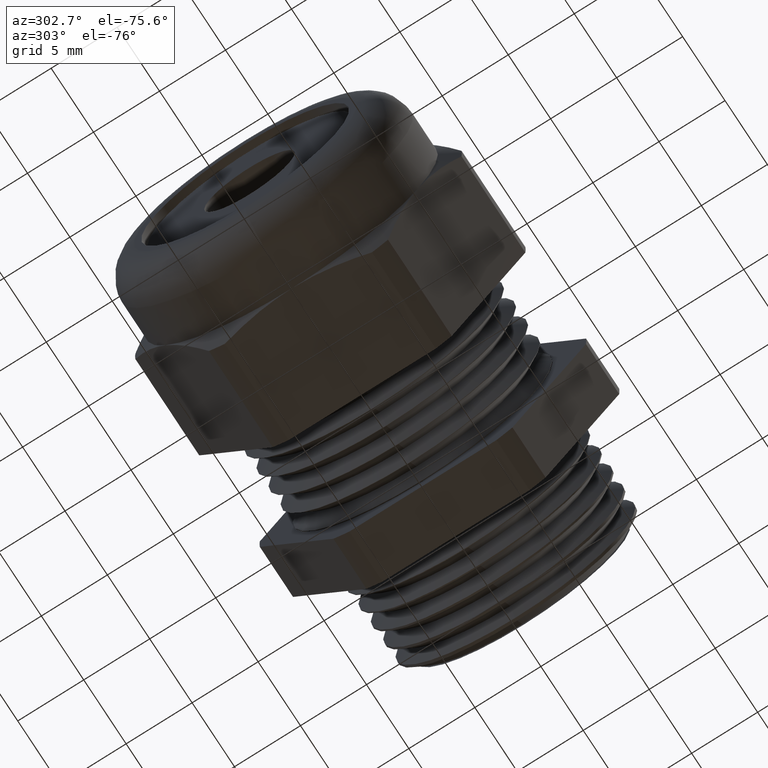
[diagram: clean part render]
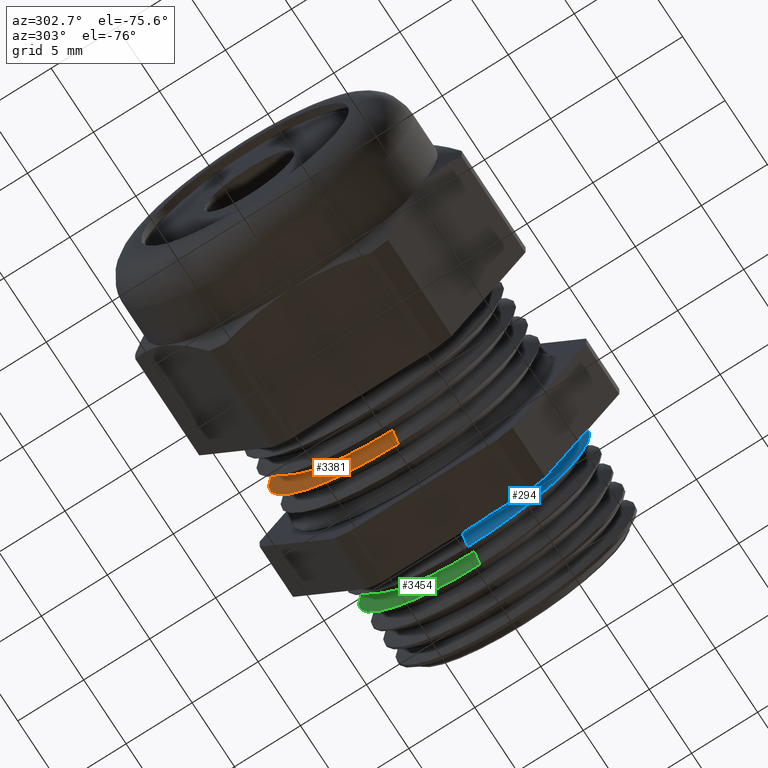
[diagram: same view with three faces highlighted in distinct colors, each labeled with its STEP entity id]
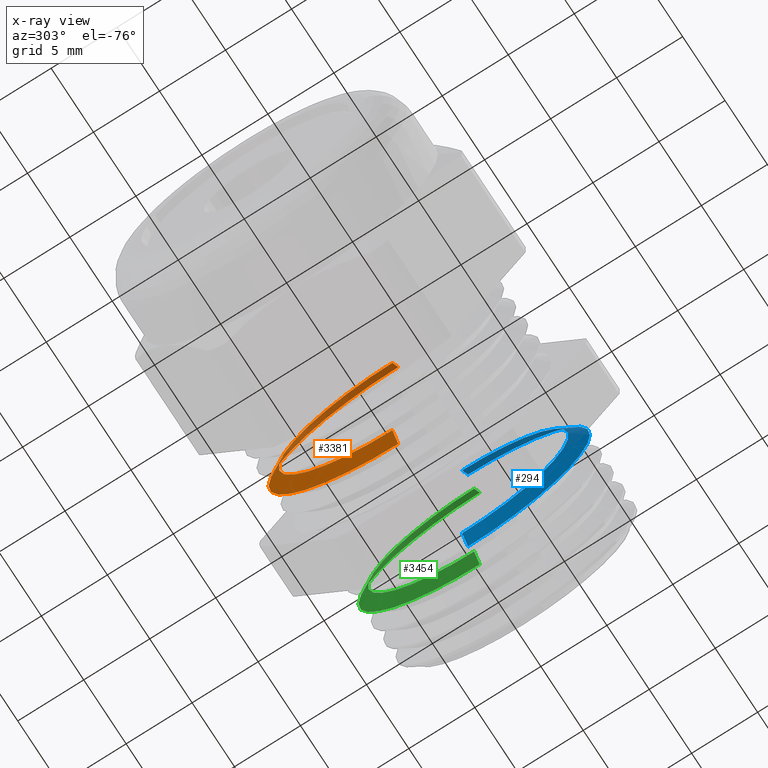
[diagram: x-ray of the same camera — body ghosted, the three highlighted faces saturated]
A machine part, auxiliary view with three faces highlighted in distinct colors.
The next image is the same camera in x-ray (body ghosted, the three faces saturated) — at least one of them is partly hidden behind the body in this view.
Their STEP definitions:

[orange] entity #3381 — the highlighted conical surface has half-angle 60 deg.
#2789 = DIRECTION ( 'NONE',  ( 0.0000000000000000000, 0.0000000000000000000, -1.000000000000000000 ) ) ;
#2790 = DIRECTION ( 'NONE',  ( 1.000000000000000000, 0.0000000000000000000, 0.0000000000000000000 ) ) ;
#2791 = AXIS2_PLACEMENT_3D ( 'NONE', #2794, #2790, #2789 ) ;
#2792 = CONICAL_SURFACE ( 'NONE', #2791, 0.3392686249999999900, 1.047197551196595600 ) ;
#2794 = CARTESIAN_POINT ( 'NONE',  ( -0.2963333461552114000, 0.0000000000000000000, 0.0000000000000000000 ) ) ;
#2800 = FACE_OUTER_BOUND ( 'NONE', #3365, .T. ) ;
#2886 = CARTESIAN_POINT ( 'NONE',  ( -0.2963333461552114000, 0.0000000000000000000, 0.0000000000000000000 ) ) ;
#2887 = CARTESIAN_POINT ( 'NONE',  ( -0.2963333461552114000, 0.0000000000000000000, -0.3392686249999999900 ) ) ;
#2888 = CARTESIAN_POINT ( 'NONE',  ( -0.2963333461552114000, 4.446500411237423700E-017, 0.3392686249999999900 ) ) ;
#2941 = DIRECTION ( 'NONE',  ( 0.0000000000000000000, 0.0000000000000000000, -1.000000000000000000 ) ) ;
#2942 = DIRECTION ( 'NONE',  ( 1.000000000000000000, 0.0000000000000000000, 0.0000000000000000000 ) ) ;
#2943 = AXIS2_PLACEMENT_3D ( 'NONE', #2886, #2942, #2941 ) ;
#2944 = CIRCLE ( 'NONE', #2943, 0.3392686249999999900 ) ;
#3147 = DIRECTION ( 'NONE',  ( 0.5000000000000017800, 0.0000000000000000000, -0.8660254037844374900 ) ) ;
#3148 = VECTOR ( 'NONE', #3147, 39.37007874015748100 ) ;
#3149 = CARTESIAN_POINT ( 'NONE',  ( -0.2963333461552114000, 0.0000000000000000000, -0.3392686249999999900 ) ) ;
#3154 = LINE ( 'NONE', #3149, #3148 ) ;
#3183 = DIRECTION ( 'NONE',  ( 0.5000000000000017800, 1.060575238724905400E-016, 0.8660254037844374900 ) ) ;
#3184 = VECTOR ( 'NONE', #3183, 39.37007874015748100 ) ;
#3185 = CARTESIAN_POINT ( 'NONE',  ( -0.2963333461552114000, 4.154842356573737500E-017, 0.3392686249999999900 ) ) ;
#3186 = LINE ( 'NONE', #3185, #3184 ) ;
#3187 = CARTESIAN_POINT ( 'NONE',  ( -0.2688333589770892700, 0.0000000000000000000, 0.3869000000000000200 ) ) ;
#3189 = CARTESIAN_POINT ( 'NONE',  ( -0.2688333589770892700, 4.738158465901109900E-017, -0.3869000000000000200 ) ) ;
#3190 = DIRECTION ( 'NONE',  ( 0.0000000000000000000, 0.0000000000000000000, -1.000000000000000000 ) ) ;
#3191 = DIRECTION ( 'NONE',  ( 1.000000000000000000, 0.0000000000000000000, 0.0000000000000000000 ) ) ;
#3192 = CARTESIAN_POINT ( 'NONE',  ( -0.2688333589770892700, 0.0000000000000000000, 0.0000000000000000000 ) ) ;
#3193 = AXIS2_PLACEMENT_3D ( 'NONE', #3192, #3191, #3190 ) ;
#3194 = CIRCLE ( 'NONE', #3193, 0.3869000000000000200 ) ;
#3365 = EDGE_LOOP ( 'NONE', ( #3377, #3393, #3564, #3538 ) ) ;
#3377 = ORIENTED_EDGE ( 'NONE', *, *, #3428, .T. ) ;
#3381 = ADVANCED_FACE ( 'NONE', ( #2800 ), #2792, .T. ) ;
#3393 = ORIENTED_EDGE ( 'NONE', *, *, #3565, .T. ) ;
#3424 = VERTEX_POINT ( 'NONE', #2888 ) ;
#3425 = VERTEX_POINT ( 'NONE', #2887 ) ;
#3428 = EDGE_CURVE ( 'NONE', #3425, #3424, #2944, .T. ) ;
#3538 = ORIENTED_EDGE ( 'NONE', *, *, #3552, .F. ) ;
#3552 = EDGE_CURVE ( 'NONE', #3425, #3561, #3154, .T. ) ;
#3560 = EDGE_CURVE ( 'NONE', #3561, #3563, #3194, .T. ) ;
#3561 = VERTEX_POINT ( 'NONE', #3189 ) ;
#3563 = VERTEX_POINT ( 'NONE', #3187 ) ;
#3564 = ORIENTED_EDGE ( 'NONE', *, *, #3560, .F. ) ;
#3565 = EDGE_CURVE ( 'NONE', #3424, #3563, #3186, .T. ) ;

[blue] entity #294 — the highlighted conical surface has half-angle 60 deg.
#292 = ORIENTED_EDGE ( 'NONE', *, *, #3315, .T. ) ;
#293 = ORIENTED_EDGE ( 'NONE', *, *, #516, .T. ) ;
#294 = ADVANCED_FACE ( 'NONE', ( #1468 ), #1463, .T. ) ;
#367 = EDGE_LOOP ( 'NONE', ( #368, #369, #292, #293 ) ) ;
#368 = ORIENTED_EDGE ( 'NONE', *, *, #3316, .F. ) ;
#369 = ORIENTED_EDGE ( 'NONE', *, *, #455, .F. ) ;
#455 = EDGE_CURVE ( 'NONE', #3472, #3398, #1682, .T. ) ;
#516 = EDGE_CURVE ( 'NONE', #3301, #3319, #1818, .T. ) ;
#1458 = DIRECTION ( 'NONE',  ( 0.0000000000000000000, 0.0000000000000000000, -1.000000000000000000 ) ) ;
#1459 = DIRECTION ( 'NONE',  ( 1.000000000000000000, 0.0000000000000000000, 0.0000000000000000000 ) ) ;
#1460 = CARTESIAN_POINT ( 'NONE',  ( 0.02793169791390365600, 0.0000000000000000000, 0.0000000000000000000 ) ) ;
#1461 = AXIS2_PLACEMENT_3D ( 'NONE', #1460, #1459, #1458 ) ;
#1463 = CONICAL_SURFACE ( 'NONE', #1461, 0.3166208800714525600, 1.047197551196598700 ) ;
#1468 = FACE_OUTER_BOUND ( 'NONE', #367, .T. ) ;
#1674 = DIRECTION ( 'NONE',  ( 0.0000000000000000000, 0.0000000000000000000, 1.000000000000000000 ) ) ;
#1675 = DIRECTION ( 'NONE',  ( -1.000000000000000000, 0.0000000000000000000, 0.0000000000000000000 ) ) ;
#1676 = CARTESIAN_POINT ( 'NONE',  ( 0.02793169791390365600, 0.0000000000000000000, 0.0000000000000000000 ) ) ;
#1677 = AXIS2_PLACEMENT_3D ( 'NONE', #1676, #1675, #1674 ) ;
#1682 = CIRCLE ( 'NONE', #1677, 0.3166208800714525600 ) ;
#1814 = DIRECTION ( 'NONE',  ( 0.0000000000000000000, 0.0000000000000000000, 1.000000000000000000 ) ) ;
#1815 = DIRECTION ( 'NONE',  ( -1.000000000000000000, 0.0000000000000000000, 0.0000000000000000000 ) ) ;
#1816 = CARTESIAN_POINT ( 'NONE',  ( 0.05503140632520380600, 0.0000000000000000000, 0.0000000000000000000 ) ) ;
#1817 = AXIS2_PLACEMENT_3D ( 'NONE', #1816, #1815, #1814 ) ;
#1818 = CIRCLE ( 'NONE', #1817, 0.3635589519101262200 ) ;
#2632 = CARTESIAN_POINT ( 'NONE',  ( 0.05503140632520380600, 4.452313067581024500E-017, -0.3635589519101261600 ) ) ;
#2665 = DIRECTION ( 'NONE',  ( 0.4999999999999991100, 1.060575238724907500E-016, 0.8660254037844391500 ) ) ;
#2666 = VECTOR ( 'NONE', #2665, 39.37007874015748100 ) ;
#2667 = CARTESIAN_POINT ( 'NONE',  ( 0.02793169791390365600, 3.877487473227224100E-017, 0.3166208800714525600 ) ) ;
#2668 = LINE ( 'NONE', #2667, #2666 ) ;
#2669 = DIRECTION ( 'NONE',  ( 0.4999999999999991100, 0.0000000000000000000, -0.8660254037844391500 ) ) ;
#2670 = VECTOR ( 'NONE', #2669, 39.37007874015748100 ) ;
#2671 = CARTESIAN_POINT ( 'NONE',  ( 0.02793169791390365600, 0.0000000000000000000, -0.3166208800714525600 ) ) ;
#2672 = LINE ( 'NONE', #2671, #2670 ) ;
#2724 = CARTESIAN_POINT ( 'NONE',  ( 0.05503140632520380600, 0.0000000000000000000, 0.3635589519101261600 ) ) ;
#2820 = CARTESIAN_POINT ( 'NONE',  ( 0.02793169791390365600, 0.0000000000000000000, 0.3166208800714525600 ) ) ;
#2986 = CARTESIAN_POINT ( 'NONE',  ( 0.02793169791390365600, 3.960371477330159800E-017, -0.3166208800714525600 ) ) ;
#3301 = VERTEX_POINT ( 'NONE', #2632 ) ;
#3315 = EDGE_CURVE ( 'NONE', #3472, #3301, #2672, .T. ) ;
#3316 = EDGE_CURVE ( 'NONE', #3398, #3319, #2668, .T. ) ;
#3319 = VERTEX_POINT ( 'NONE', #2724 ) ;
#3398 = VERTEX_POINT ( 'NONE', #2820 ) ;
#3472 = VERTEX_POINT ( 'NONE', #2986 ) ;

[green] entity #3454 — the highlighted conical surface has half-angle 60 deg.
#2734 = DIRECTION ( 'NONE',  ( 0.0000000000000000000, 0.0000000000000000000, -1.000000000000000000 ) ) ;
#2735 = DIRECTION ( 'NONE',  ( -1.000000000000000000, 0.0000000000000000000, 0.0000000000000000000 ) ) ;
#2736 = CARTESIAN_POINT ( 'NONE',  ( 0.1101973823376643200, 0.0000000000000000000, 0.0000000000000000000 ) ) ;
#2737 = AXIS2_PLACEMENT_3D ( 'NONE', #2736, #2735, #2734 ) ;
#2738 = CIRCLE ( 'NONE', #2737, 0.3621143799889761600 ) ;
#2740 = CARTESIAN_POINT ( 'NONE',  ( 0.1101973823376643200, 4.434622163787281000E-017, -0.3621143799889762200 ) ) ;
#2741 = DIRECTION ( 'NONE',  ( 0.4999999999999991100, 0.0000000000000000000, -0.8660254037844391500 ) ) ;
#2742 = VECTOR ( 'NONE', #2741, 39.37007874015748100 ) ;
#2743 = CARTESIAN_POINT ( 'NONE',  ( 0.08393169791390366100, 0.0000000000000000000, -0.3166208800714525600 ) ) ;
#2744 = LINE ( 'NONE', #2743, #2742 ) ;
#2767 = CARTESIAN_POINT ( 'NONE',  ( 0.1101973823376643200, 0.0000000000000000000, 0.3621143799889762200 ) ) ;
#2912 = CARTESIAN_POINT ( 'NONE',  ( 0.08393169791390366100, 0.0000000000000000000, 0.3166208800714525600 ) ) ;
#2914 = CARTESIAN_POINT ( 'NONE',  ( 0.08393169791390366100, 4.164607128499804300E-017, -0.3166208800714525600 ) ) ;
#2915 = DIRECTION ( 'NONE',  ( 0.4999999999999991100, 1.060575238724907500E-016, 0.8660254037844391500 ) ) ;
#2916 = VECTOR ( 'NONE', #2915, 39.37007874015748100 ) ;
#2917 = CARTESIAN_POINT ( 'NONE',  ( 0.08393169791390366100, 3.877487473227224100E-017, 0.3166208800714525600 ) ) ;
#2923 = LINE ( 'NONE', #2917, #2916 ) ;
#2950 = DIRECTION ( 'NONE',  ( 0.0000000000000000000, 0.0000000000000000000, 1.000000000000000000 ) ) ;
#2951 = DIRECTION ( 'NONE',  ( -1.000000000000000000, 0.0000000000000000000, 0.0000000000000000000 ) ) ;
#2952 = AXIS2_PLACEMENT_3D ( 'NONE', #2957, #2951, #2950 ) ;
#2953 = CIRCLE ( 'NONE', #2952, 0.3166208800714525600 ) ;
#2957 = CARTESIAN_POINT ( 'NONE',  ( 0.08393169791390366100, 0.0000000000000000000, 0.0000000000000000000 ) ) ;
#2960 = DIRECTION ( 'NONE',  ( 0.0000000000000000000, 0.0000000000000000000, -1.000000000000000000 ) ) ;
#2961 = DIRECTION ( 'NONE',  ( 1.000000000000000000, 0.0000000000000000000, 0.0000000000000000000 ) ) ;
#2962 = CARTESIAN_POINT ( 'NONE',  ( 0.08393169791390366100, 0.0000000000000000000, 0.0000000000000000000 ) ) ;
#2963 = AXIS2_PLACEMENT_3D ( 'NONE', #2962, #2961, #2960 ) ;
#2965 = CONICAL_SURFACE ( 'NONE', #2963, 0.3166208800714525600, 1.047197551196598700 ) ;
#2966 = FACE_OUTER_BOUND ( 'NONE', #3447, .T. ) ;
#3346 = EDGE_CURVE ( 'NONE', #3445, #3348, #2744, .T. ) ;
#3348 = VERTEX_POINT ( 'NONE', #2740 ) ;
#3349 = ORIENTED_EDGE ( 'NONE', *, *, #3346, .F. ) ;
#3350 = EDGE_CURVE ( 'NONE', #3362, #3348, #2738, .T. ) ;
#3361 = ORIENTED_EDGE ( 'NONE', *, *, #3350, .T. ) ;
#3362 = VERTEX_POINT ( 'NONE', #2767 ) ;
#3442 = EDGE_CURVE ( 'NONE', #3444, #3362, #2923, .T. ) ;
#3443 = ORIENTED_EDGE ( 'NONE', *, *, #3442, .T. ) ;
#3444 = VERTEX_POINT ( 'NONE', #2912 ) ;
#3445 = VERTEX_POINT ( 'NONE', #2914 ) ;
#3447 = EDGE_LOOP ( 'NONE', ( #3460, #3443, #3361, #3349 ) ) ;
#3454 = ADVANCED_FACE ( 'NONE', ( #2966 ), #2965, .T. ) ;
#3458 = EDGE_CURVE ( 'NONE', #3444, #3445, #2953, .T. ) ;
#3460 = ORIENTED_EDGE ( 'NONE', *, *, #3458, .F. ) ;